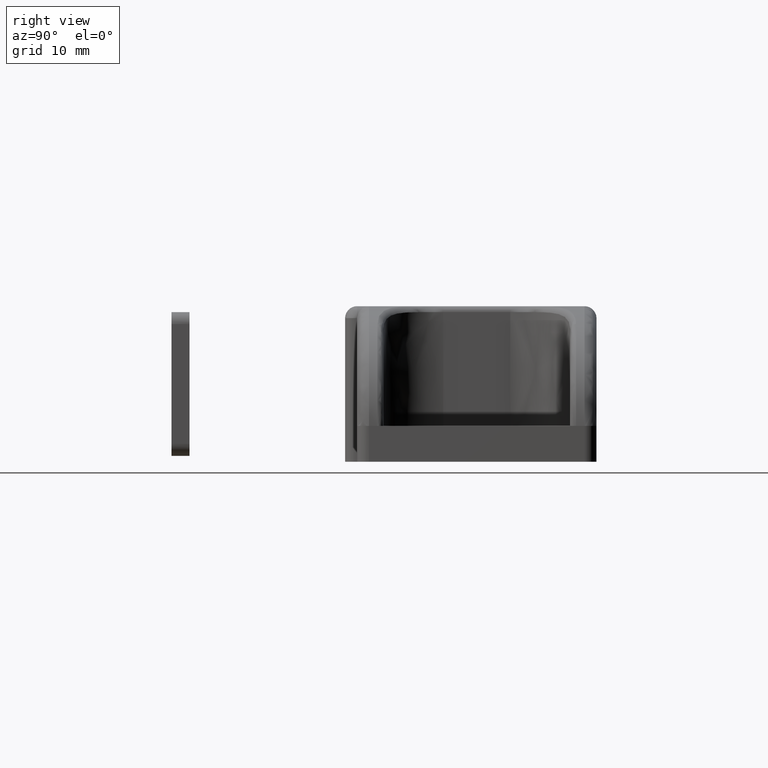
[diagram: clean part render]
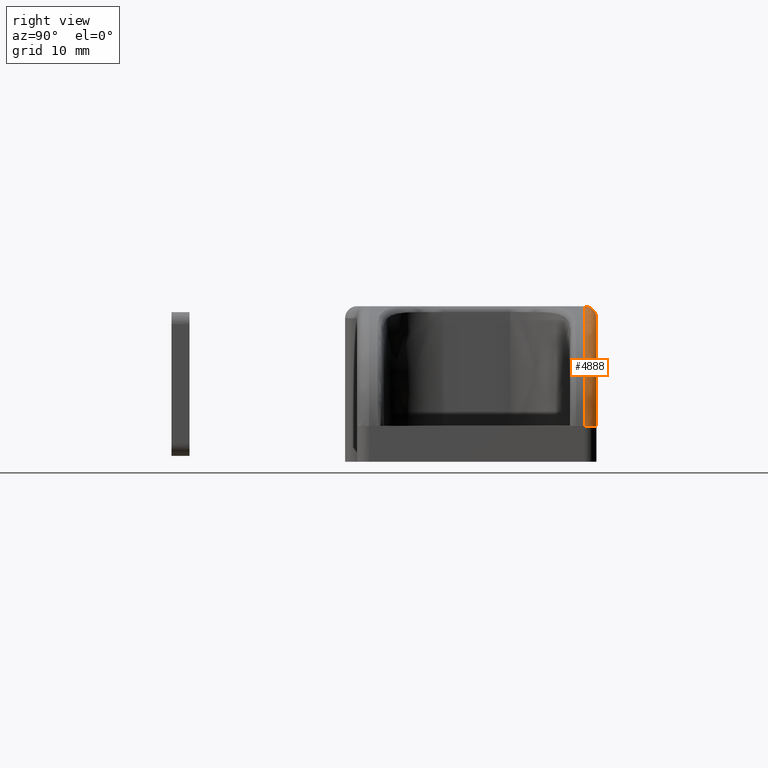
[diagram: same view with one face highlighted and labeled with its STEP entity id]
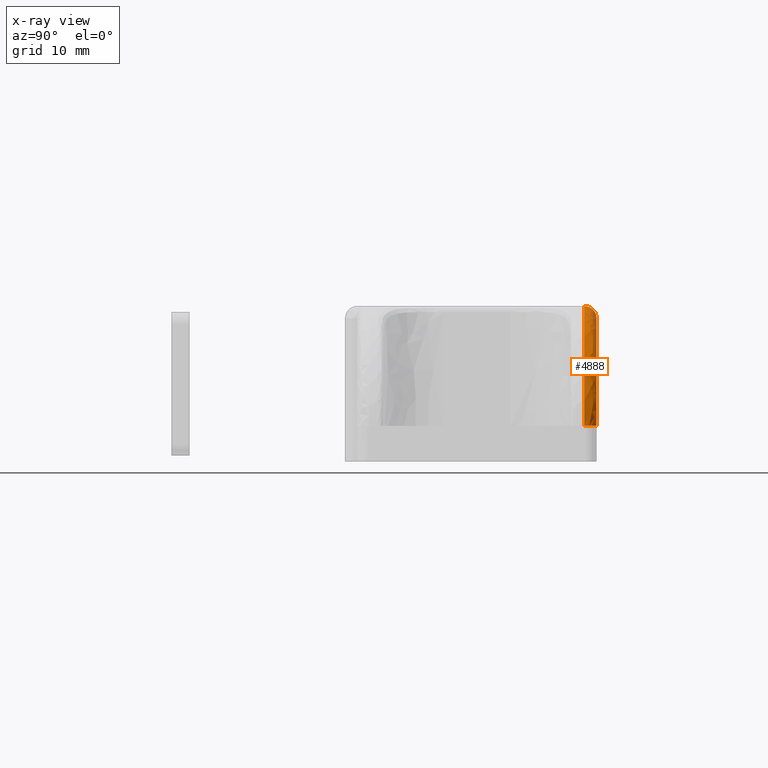
[diagram: x-ray of the same camera — body ghosted, the highlighted face saturated]
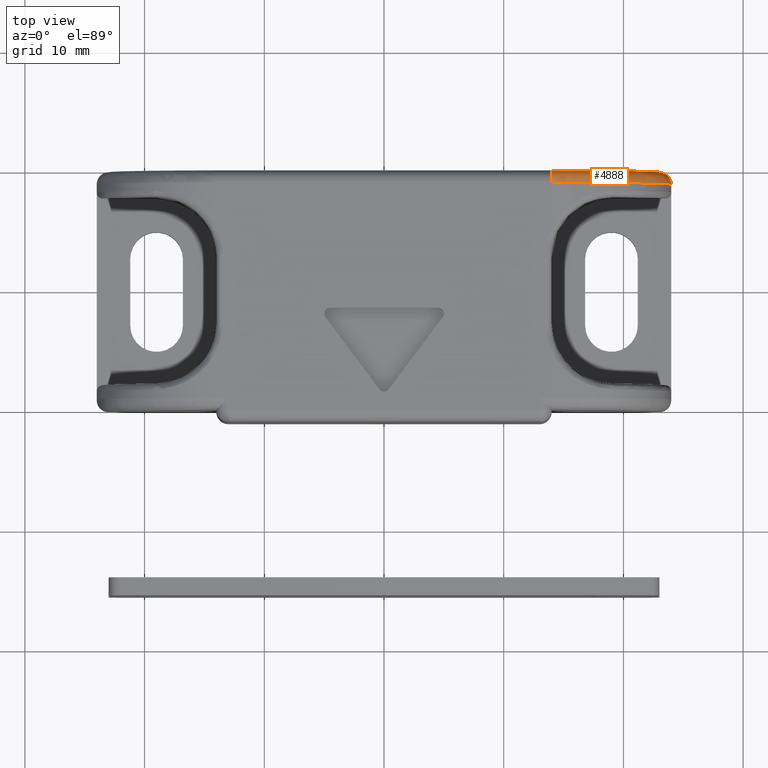
[diagram: same view with one face highlighted and labeled with its STEP entity id]
A machine part, right view. The second image highlights one B-rep face of the part: STEP entity #4888.
The next image is the same camera in x-ray: the body ghosted, the highlighted face saturated — about 0% of this face is hidden behind the body in this view.
A second angle (top view) of the same face is appended — the face is thin or edge-on in the first view.
In plain terms, the highlighted face is a freeform B-spline surface patch.
Its self-contained STEP definition (entity closure, byte-faithful):
#2632=CARTESIAN_POINT('',(13.999999999994500,10.0,12.0));
#2633=VERTEX_POINT('',#2632);
#2634=CARTESIAN_POINT('',(22.999999999996550,10.0,3.0));
#2635=VERTEX_POINT('',#2634);
#2636=CARTESIAN_POINT('',(13.999999999994500,10.0,12.0));
#2637=CARTESIAN_POINT('',(22.999999999996561,10.0,12.0));
#2638=CARTESIAN_POINT('',(22.999999999996561,10.0,3.0));
#2646=(BOUNDED_CURVE()B_SPLINE_CURVE(2,(#2636,#2637,#2638),.UNSPECIFIED.,.F.,.U.)CURVE()GEOMETRIC_REPRESENTATION_ITEM()QUASI_UNIFORM_CURVE()RATIONAL_B_SPLINE_CURVE((1.0,0.707106781186547,1.0))REPRESENTATION_ITEM(''));
#2647=EDGE_CURVE('',#2633,#2635,#2646,.T.);
#4814=CARTESIAN_POINT('',(23.999999999996550,9.0,3.0));
#4815=VERTEX_POINT('',#4814);
#4816=CARTESIAN_POINT('',(22.999999999996550,9.999999999999998,3.0));
#4817=CARTESIAN_POINT('',(23.999999999996543,9.999999999999998,3.0));
#4818=CARTESIAN_POINT('',(23.999999999996550,9.0,3.0));
#4826=(BOUNDED_CURVE()B_SPLINE_CURVE(2,(#4816,#4817,#4818),.UNSPECIFIED.,.F.,.U.)CURVE()GEOMETRIC_REPRESENTATION_ITEM()QUASI_UNIFORM_CURVE()RATIONAL_B_SPLINE_CURVE((1.0,0.707106781186548,1.0))REPRESENTATION_ITEM(''));
#4827=EDGE_CURVE('',#2635,#4815,#4826,.T.);
#4839=CARTESIAN_POINT('',(13.304796775128542,8.930462845087325,12.973378844785644));
#4840=CARTESIAN_POINT('',(24.772763335169483,8.930462845087325,13.772763632959739));
#4841=CARTESIAN_POINT('',(23.973378863999386,8.930462845087325,2.304797050821751));
#4842=CARTESIAN_POINT('',(13.299236734859219,10.077537166226078,13.053143129551014));
#4843=CARTESIAN_POINT('',(24.858920872725175,10.077537166226074,13.858921172897039));
#4844=CARTESIAN_POINT('',(24.053143148918473,10.077537166226080,2.299237012757322));
#4845=CARTESIAN_POINT('',(13.379001019778293,9.997579364222075,11.908845457553948));
#4846=CARTESIAN_POINT('',(23.622905656893014,9.997579364222071,12.622905922898246));
#4847=CARTESIAN_POINT('',(22.908845474716511,9.997579364222073,2.379001266045072));
#4855=(BOUNDED_SURFACE()B_SPLINE_SURFACE(2,2,((#4839,#4842,#4845),(#4840,#4843,#4846),(#4841,#4844,#4847)),.UNSPECIFIED.,.F.,.F.,.U.)B_SPLINE_SURFACE_WITH_KNOTS((3,3),(3,3),(0.0,18.219328583966352),(0.0,1.822373989114816),.UNSPECIFIED.)GEOMETRIC_REPRESENTATION_ITEM()RATIONAL_B_SPLINE_SURFACE(((0.845035852041583,0.554533604994714,0.845035841399394),(0.554533604994714,0.363898784087685,0.554533598011044),(0.845035841399394,0.554533598011044,0.845035830757205)))REPRESENTATION_ITEM('')SURFACE());
#4856=CARTESIAN_POINT('',(13.999999999994261,9.0,13.0));
#4857=VERTEX_POINT('',#4856);
#4858=CARTESIAN_POINT('',(13.999999999994500,9.999999999999998,12.0));
#4859=CARTESIAN_POINT('',(13.999999999994269,9.999999999999998,13.000000000000004));
#4860=CARTESIAN_POINT('',(13.999999999994269,9.0,13.0));
#4868=(BOUNDED_CURVE()B_SPLINE_CURVE(2,(#4858,#4859,#4860),.UNSPECIFIED.,.F.,.U.)CURVE()GEOMETRIC_REPRESENTATION_ITEM()QUASI_UNIFORM_CURVE()RATIONAL_B_SPLINE_CURVE((1.0,0.707106781186548,1.0))REPRESENTATION_ITEM(''));
#4869=EDGE_CURVE('',#2633,#4857,#4868,.T.);
#4870=ORIENTED_EDGE('',*,*,#4869,.T.);
#4871=CARTESIAN_POINT('',(23.999999999996561,9.0,3.0));
#4872=CARTESIAN_POINT('',(23.999999999996561,9.000000000000002,13.000000000000004));
#4873=CARTESIAN_POINT('',(13.999999999996559,9.0,13.0));
#4881=(BOUNDED_CURVE()B_SPLINE_CURVE(2,(#4871,#4872,#4873),.UNSPECIFIED.,.F.,.U.)CURVE()GEOMETRIC_REPRESENTATION_ITEM()QUASI_UNIFORM_CURVE()RATIONAL_B_SPLINE_CURVE((1.0,0.707106781186548,1.0))REPRESENTATION_ITEM(''));
#4882=EDGE_CURVE('',#4815,#4857,#4881,.T.);
#4883=ORIENTED_EDGE('',*,*,#4882,.F.);
#4884=ORIENTED_EDGE('',*,*,#4827,.F.);
#4885=ORIENTED_EDGE('',*,*,#2647,.F.);
#4886=EDGE_LOOP('',(#4870,#4883,#4884,#4885));
#4887=FACE_OUTER_BOUND('',#4886,.T.);
#4888=ADVANCED_FACE('',(#4887),#4855,.T.);